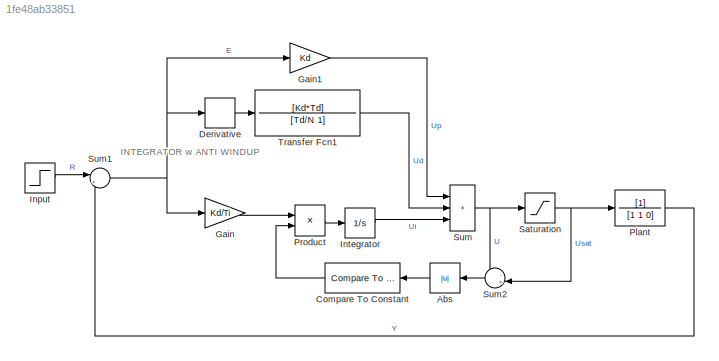
MODEL slx_1fe48ab33851
KIND model
CONFIG AbsTol = auto
CONFIG EnableMultiTasking = off
CONFIG FixedStep = auto
CONFIG MaxStep = auto
CONFIG MinStep = auto
CONFIG RelTol = 1e-3
CONFIG SampleTimeConstraint = Unconstrained
CONFIG SolverName = VariableStepAuto
CONFIG StartTime = 0.0
CONFIG StopTime = Tmax
BLOCK [Abs] Abs
  NameLocation = top
  SaturateOnIntegerOverflow = off
BLOCK [Reference] Compare To Constant  REF=simulink/Logic and Bit
Operations/Compare
To Constant
  NameLocation = top
  Ports = [1, 1]
  SourceBlock = simulink/Logic and Bit\nOperations/Compare\nTo Constant
  SourceProductBaseCode = SL
  SourceType = Compare To Constant
BLOCK [Derivative] Derivative
BLOCK [Gain] Gain
  Gain = Kd/Ti
BLOCK [Gain] Gain1
  Gain = Kd
BLOCK [Step] Input
  SampleTime = 0
BLOCK [Integrator] Integrator
  Ports = [1, 1]
BLOCK [TransferFcn] Plant
  Denominator = [1 1 0]
BLOCK [Product] Product
  Ports = [2, 1]
BLOCK [Saturate] Saturation
  LowerLimit = -S
  UpperLimit = S
BLOCK [Sum] Sum
  IconShape = rectangular
  Inputs = +++
  Ports = [3, 1]
BLOCK [Sum] Sum1
  Inputs = |+-
  Ports = [2, 1]
BLOCK [Sum] Sum2
  Inputs = -+|
  NameLocation = top
  Ports = [2, 1]
BLOCK [TransferFcn] Transfer Fcn1
  Denominator = [Td/N 1]
  Numerator = [Kd*Td]
ANNOTATION (root): INTEGRATOR w ANTI WINDUP
LINE Abs:1 -> Compare To Constant:1
LINE Compare To Constant:1 -> Product:2
LINE Derivative:1 -> Transfer Fcn1:1
LINE Gain1:1 -> Sum:1
LINE Gain:1 -> Product:1
LINE Input:1 -> Sum1:1
LINE Integrator:1 -> Sum:3
LINE Plant:1 -> Sum1:2
LINE Product:1 -> Integrator:1
NET Saturation:1 -> Plant:1, Sum2:2
NET Sum1:1 -> Derivative:1, Gain1:1, Gain:1
LINE Sum2:1 -> Abs:1
NET Sum:1 -> Saturation:1, Sum2:1
LINE Transfer Fcn1:1 -> Sum:2
note: NET lines group one-source signal fan-out (src -> all destinations, sorted); 1:1 wires keep LINE
